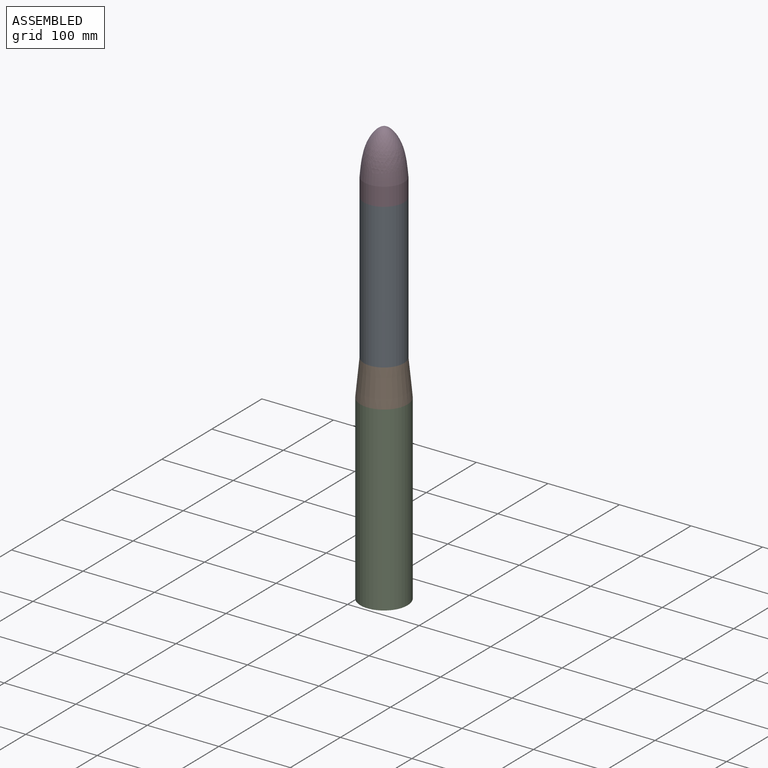
[diagram: assembled view]
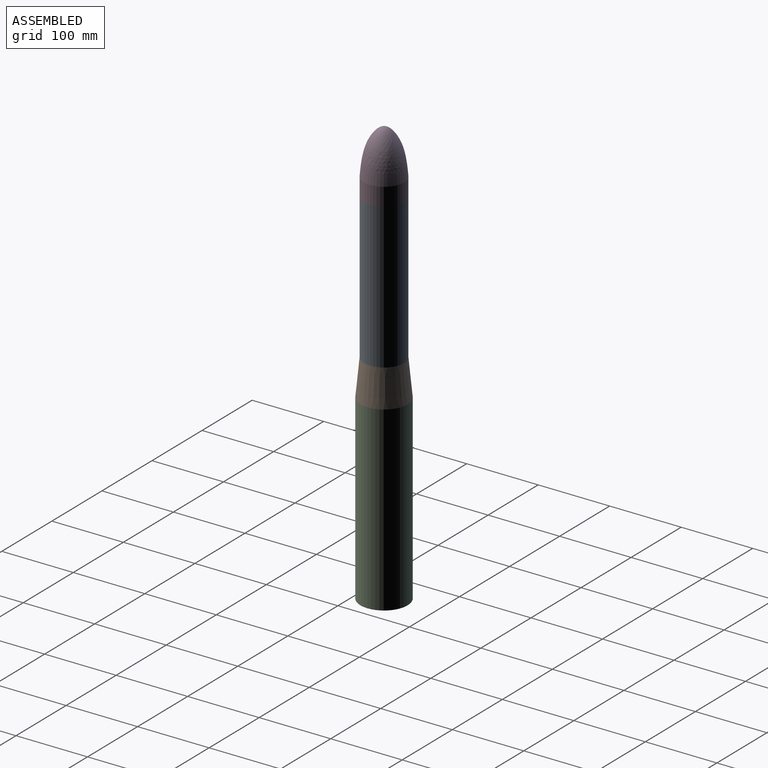
[diagram: assembled view, second angle]
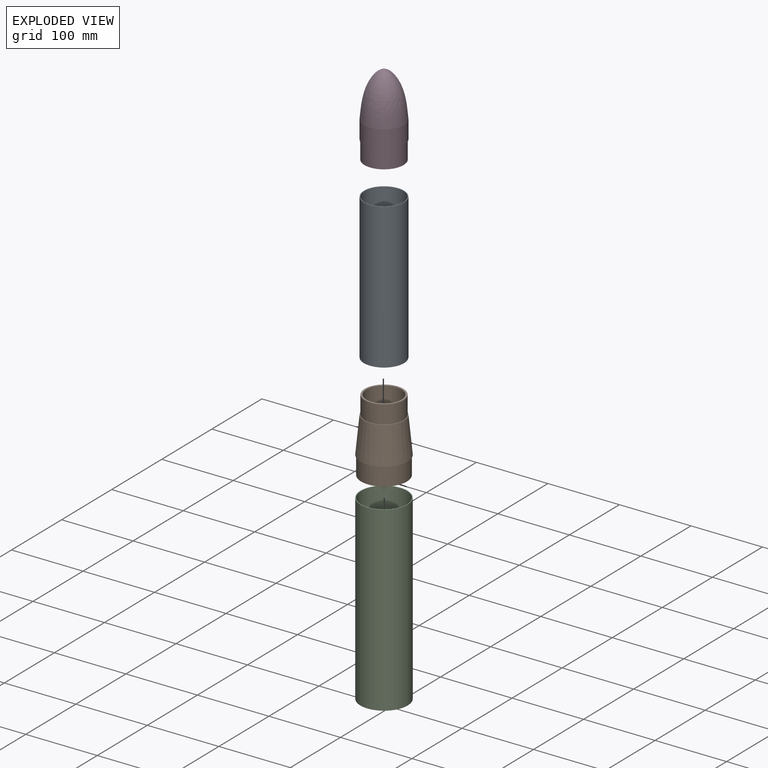
[diagram: exploded view]
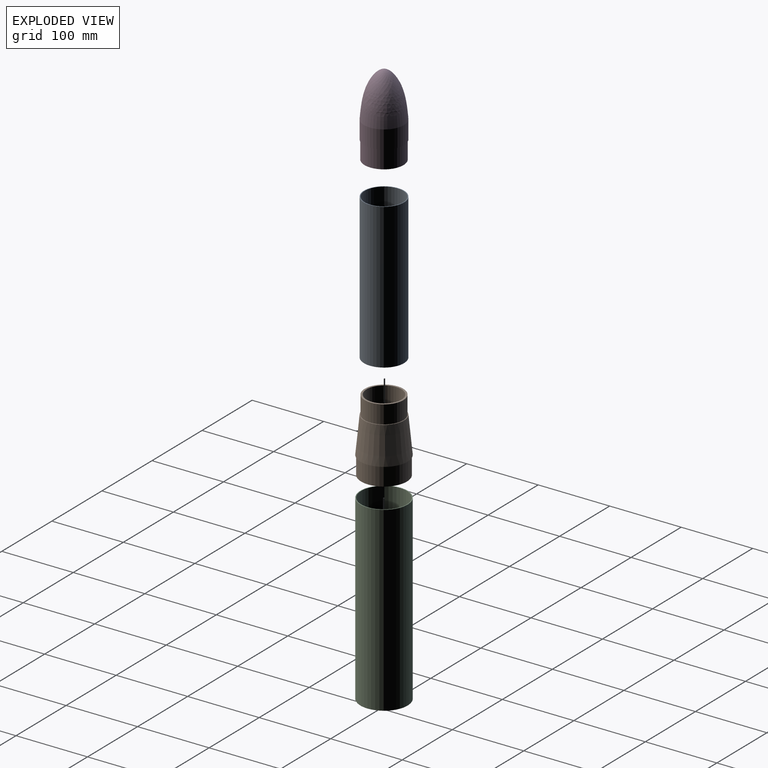
[diagram: exploded view, second angle]
ASSEMBLY  parts=4 mates=3
PART A: 4 faces, bbox 56x56x203.2 mm
  f0: cylinder r=27mm len=203.2mm, axis (0,0,-1), area 34472.1mm2, adj f2,f3
  f1: cylinder r=28mm len=203.2mm, axis (0,0,-1), area 35748.8mm2, adj f2,f3
  f2: plane 56x56mm, normal (0,0,1), area 172.8mm2, adj f0,f1
  f3: plane 56x56mm, normal (0,0,-1), area 172.8mm2, adj f0,f1
PART B: 21 faces, bbox 66x66x101.6 mm
  f0: plane 56x56mm, normal (0,0,1), area 172.8mm2, adj f2,f5
  f1: plane 66x66mm, normal (0,0,-1), area 204.2mm2, adj f2,f3
  f2: cone r=28mm half-angle=5.6deg, axis (0,0,-1), area 9782.2mm2, adj f0,f1
  f3: cylinder r=32mm len=64mm, axis (0,0,1), area 5107mm2, adj f1,f4
  f4: plane 64x64mm, normal (0,0,-1), area 490.4mm2, adj f3,f10
  f5: cylinder r=27mm len=54mm, axis (0,0,-1), area 4309mm2, adj f0,f6
  f6: plane 54x54mm, normal (0,0,1), area 410.6mm2, adj f5,f11
  f7: plane 51.4x51.4mm, normal (0,0,-1), area 195mm2, adj f9,f11
  f8: plane 60.4x60.4mm, normal (0,0,1), area 138.3mm2, adj f9,f10
  f9: cone r=25.47mm half-angle=5.6deg, axis (0,0,-1), area 8067.3mm2, adj f7,f8
  f10: cylinder r=29.46mm len=58.92mm, axis (0,0,1), area 5086mm2, adj f4,f8,f12,f13,f19,f20
  f11: cylinder r=24.46mm len=48.92mm, axis (0,0,-1), area 4294mm2, adj f6,f7
  f12: plane 9.98x6.35mm, normal (0,0,1), area 63mm2, adj f10,f18,f19,f20
  f13: plane 9.98x6.35mm, normal (0,0,-1), area 63mm2, adj f10,f18,f19,f20
  f14: plane 10.99x6.35mm, normal (1,0,0), area 69.8mm2, adj f15,f17,f19,f20
  f15: plane 7.98x6.35mm, normal (0,0,-1), area 50.7mm2, adj f14,f16,f19,f20
  f16: plane 10.99x6.35mm, normal (-1,0,0), area 69.8mm2, adj f15,f17,f19,f20
  f17: plane 7.98x6.35mm, normal (0,0,1), area 50.7mm2, adj f14,f16,f19,f20
  f18: plane 13.48x6.35mm, normal (1,0,0), area 85.6mm2, adj f12,f13,f19,f20
  f19: plane 13.48x9.81mm, normal (0,-1,0), area 44.5mm2, adj f10,f12,f13,f14,f15,f16,f17,f18
  f20: plane 13.48x9.81mm, normal (0,1,0), area 44.5mm2, adj f10,f12,f13,f14,f15,f16,f17,f18
PART C: 4 faces, bbox 66x66x254 mm
  f0: cylinder r=32mm len=254mm, axis (0,0,-1), area 51069.7mm2, adj f2,f3
  f1: cylinder r=33mm len=254mm, axis (0,0,-1), area 52665.7mm2, adj f2,f3
  f2: plane 66x66mm, normal (0,0,1), area 204.2mm2, adj f0,f1
  f3: plane 66x66mm, normal (0,0,-1), area 204.2mm2, adj f0,f1
PART D: 11 faces, bbox 56x56x113.7 mm
  f0: revolved ~62.85x56mm, area 8958.8mm2, adj f1,f3
  f1: cylinder r=28mm len=56mm, axis (0,0,-1), area 4468.6mm2, adj f0,f2
  f2: plane 56x56mm, normal (0,0,-1), area 130.2mm2, adj f1,f4
  f3: sphere r=19.25mm, area 1.9mm2, adj f0
  f4: cylinder r=27.25mm len=54.5mm, axis (0,0,1), area 4348.9mm2, adj f2,f5
  f5: plane 54.5x54.5mm, normal (0,0,-1), area 414.6mm2, adj f4,f10
  f6: revolved ~60.43x50.92mm, area 7713.7mm2, adj f7,f9
  f7: cylinder r=25.46mm len=50.92mm, axis (0,0,-1), area 3638.9mm2, adj f6,f8
  f8: plane 50.92x50.92mm, normal (0,0,1), area 118.2mm2, adj f7,f10
  f9: sphere r=16.71mm, area 1.2mm2, adj f6
  f10: cylinder r=24.71mm len=49.42mm, axis (0,0,1), area 4337.9mm2, adj f5,f8
PLACE A t=(-408.23,-201.16,-211.08)mm
PLACE B t=(-408.23,-201.16,-261.84)mm
PLACE C t=(-408.23,-201.16,-515.8)mm
PLACE D t=(-408.23,-201.16,-7.92)mm
MATE fastened C.f0 <-> B.f2  axis (0,0,-1) through (-408.23,-201.16,-261.8)mm
MATE fastened A.f0 <-> B.f2  axis (0,0,-1) through (-408.23,-201.16,-211.08)mm
MATE fastened A.f0 <-> D.f4  axis (0,0,1) through (-408.23,-201.16,-7.88)mm
